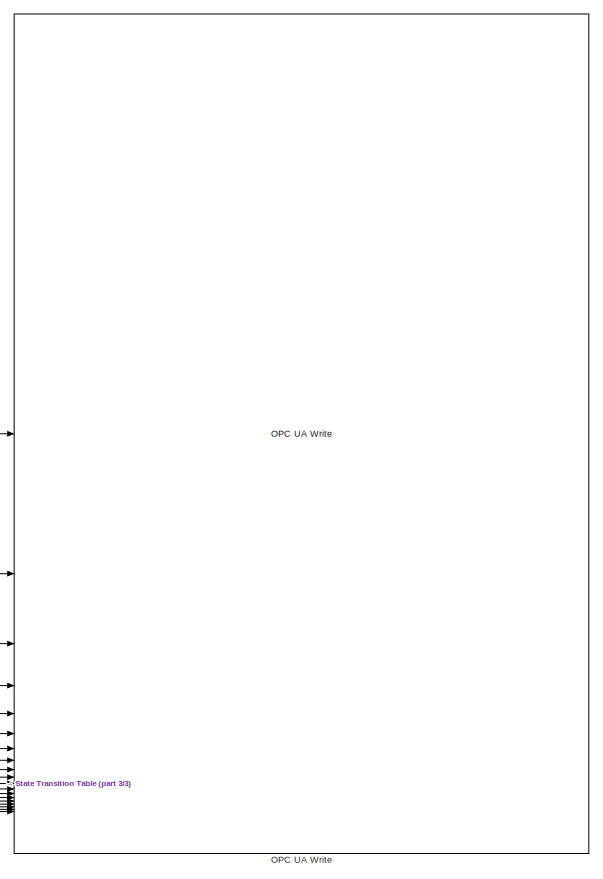
[diagram: root canvas - part 1/3, right side, full height]
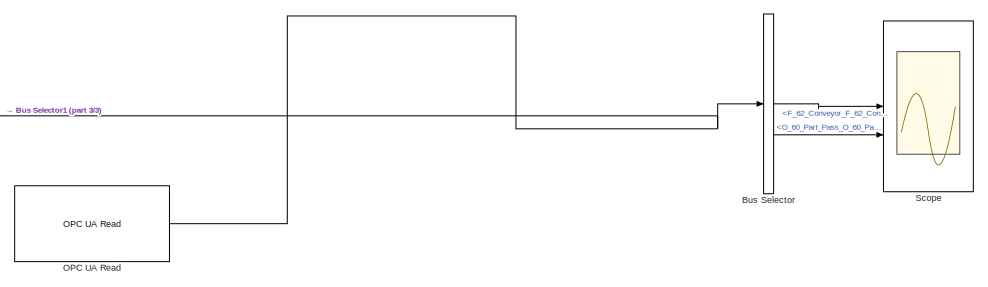
[diagram: root canvas - part 2/3, top center region]
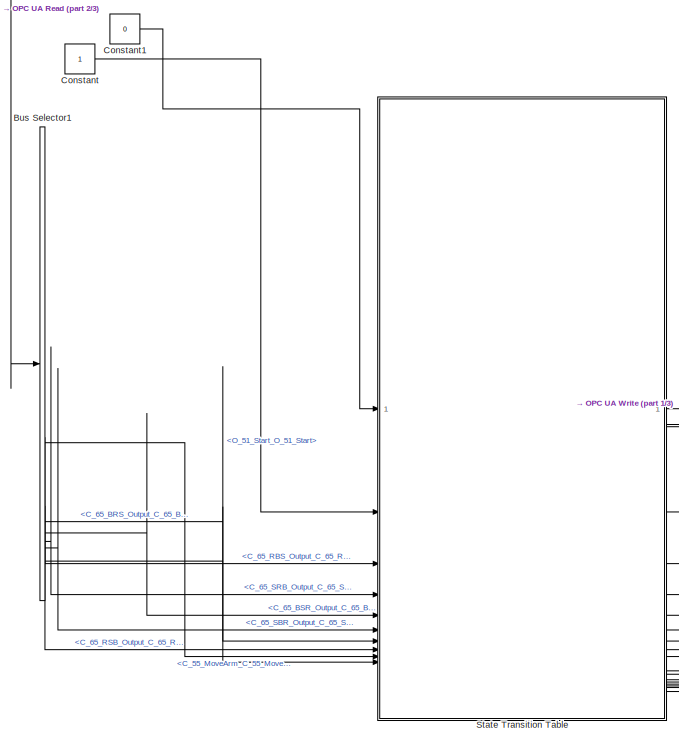
[diagram: root canvas - part 3/3, bottom left region]
MODEL slx_985c180f3ad2
KIND model
CONFIG AbsTol = auto
CONFIG EnableMultiTasking = off
CONFIG FixedStep = 0.05
CONFIG MaxStep = auto
CONFIG MinStep = auto
CONFIG RelTol = 1e-3
CONFIG SampleTimeConstraint = Unconstrained
CONFIG SolverName = FixedStepAuto
CONFIG StartTime = 0.0
CONFIG StopTime = 30
BLOCK [BusSelector] Bus Selector
  OutputSignals = F_62_Conveyor_F_62_Conveyor,O_60_Part_Pass_O_60_Part_Pass
BLOCK [BusSelector] Bus Selector1
  OutputSignals = C_55_Cart2Del_C_55_Cart2Del,C_55_MoveArm_C_55_MoveArm,C_65_RBS_Output_C_65_RBS_Output,C_65_RSB_Output_C_65_RSB_Output,C_65_BRS_Output_C_65_BRS_Output,C_65_BSR_Output_C_65_BSR_Output,C_65_SRB_Output_C_65_SRB_Output,C_65_SBR_Output_C_65_SBR_Output,O_60_SInd_O_60_SInd,O_60_SPhoto_O_60_SPhoto,O_51_Start_O_51_Start
BLOCK [Constant] Constant
BLOCK [Constant] Constant1
  Value = 0
BLOCK [Reference] OPC UA Read  REF=opcualib/OPC UA Read
  SourceBlock = opcualib/OPC UA Read
  SourceType = opcUARead
BLOCK [Reference] OPC UA Write  REF=opcualib/OPC UA Write
  SourceBlock = opcualib/OPC UA Write
  SourceType = opcUAWrite
BLOCK [Scope] Scope
  Floating = off
  NumInputPorts = 2
  ScopeSpecificationString = Simulink.scopes.TimeScopeBlockCfg('CurrentConfiguration', extmgr.ConfigurationSet(extmgr.Configuration('Core','General UI',true,'FigureColor',[1 1 1]),extmgr.Configuration('Core','Source UI',true),extmgr.Configuration('Sources','WiredSimulink',true),extmgr.Configuration('Visuals','Time Domain',true,'SerializedDisplays',{struct('MinYLimReal','-0.125','MaxYLimReal','1.125','YLabelReal','','MinYLimMa...<+2244ch>
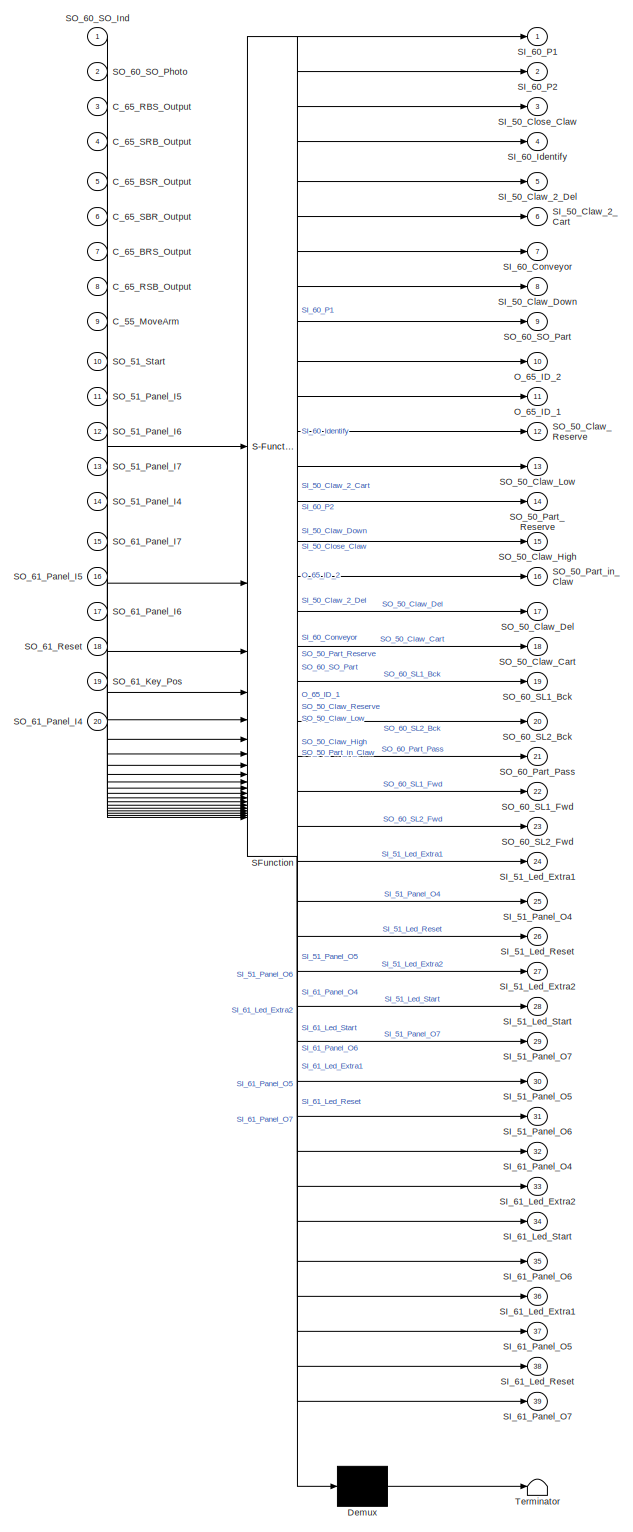
[diagram: State Transition Table - part 1/1, most of the canvas]
BLOCK [SubSystem] State Transition Table
  ErrorFcn = Stateflow.Translate.translate
  PermitHierarchicalResolution = ExplicitOnly
  SFBlockType = State Transition Table
  TreatAsAtomicUnit = on
BLOCK [Demux] State Transition Table/ Demux 
  Outputs = 1
BLOCK [S-Function] State Transition Table/ SFunction 
  EnableBusSupport = on
  FunctionName = sf_sfun
  PortCounts = [20 40]
  SFcnIsStateOwnerBlock = off
  SFunctionDeploymentMode = off
  Tag = Stateflow S-Function 4
BLOCK [Terminator] State Transition Table/ Terminator 
BLOCK [Inport] State Transition Table/C_55_MoveArm
  Port = 9
BLOCK [Inport] State Transition Table/C_65_BRS_Output
  Port = 7
BLOCK [Inport] State Transition Table/C_65_BSR_Output
  Port = 5
BLOCK [Inport] State Transition Table/C_65_RBS_Output
  Port = 3
BLOCK [Inport] State Transition Table/C_65_RSB_Output
  Port = 8
BLOCK [Inport] State Transition Table/C_65_SBR_Output
  Port = 6
BLOCK [Inport] State Transition Table/C_65_SRB_Output
  Port = 4
BLOCK [Outport] State Transition Table/O_65_ID_1
  Port = 11
BLOCK [Outport] State Transition Table/O_65_ID_2
  Port = 10
BLOCK [Outport] State Transition Table/SI_50_Claw_2_Cart
  Port = 6
BLOCK [Outport] State Transition Table/SI_50_Claw_2_Del
  Port = 5
BLOCK [Outport] State Transition Table/SI_50_Claw_Down
  Port = 8
BLOCK [Outport] State Transition Table/SI_50_Close_Claw
  Port = 3
BLOCK [Outport] State Transition Table/SI_51_Led_Extra1
  Port = 24
BLOCK [Outport] State Transition Table/SI_51_Led_Extra2
  Port = 27
BLOCK [Outport] State Transition Table/SI_51_Led_Reset
  Port = 26
BLOCK [Outport] State Transition Table/SI_51_Led_Start
  Port = 28
BLOCK [Outport] State Transition Table/SI_51_Panel_O4
  Port = 25
BLOCK [Outport] State Transition Table/SI_51_Panel_O5
  Port = 30
BLOCK [Outport] State Transition Table/SI_51_Panel_O6
  Port = 31
BLOCK [Outport] State Transition Table/SI_51_Panel_O7
  Port = 29
BLOCK [Outport] State Transition Table/SI_60_Conveyor
  Port = 7
BLOCK [Outport] State Transition Table/SI_60_Identify
  Port = 4
BLOCK [Outport] State Transition Table/SI_60_P1
BLOCK [Outport] State Transition Table/SI_60_P2
  Port = 2
BLOCK [Outport] State Transition Table/SI_61_Led_Extra1
  Port = 36
BLOCK [Outport] State Transition Table/SI_61_Led_Extra2
  Port = 33
BLOCK [Outport] State Transition Table/SI_61_Led_Reset
  Port = 38
BLOCK [Outport] State Transition Table/SI_61_Led_Start
  Port = 34
BLOCK [Outport] State Transition Table/SI_61_Panel_O4
  Port = 32
BLOCK [Outport] State Transition Table/SI_61_Panel_O5
  Port = 37
BLOCK [Outport] State Transition Table/SI_61_Panel_O6
  Port = 35
BLOCK [Outport] State Transition Table/SI_61_Panel_O7
  Port = 39
BLOCK [Outport] State Transition Table/SO_50_Claw_Cart
  Port = 18
BLOCK [Outport] State Transition Table/SO_50_Claw_Del
  Port = 17
BLOCK [Outport] State Transition Table/SO_50_Claw_High
  Port = 15
BLOCK [Outport] State Transition Table/SO_50_Claw_Low
  Port = 13
BLOCK [Outport] State Transition Table/SO_50_Claw_Reserve
  Port = 12
BLOCK [Outport] State Transition Table/SO_50_Part_Reserve
  Port = 14
BLOCK [Outport] State Transition Table/SO_50_Part_in_Claw
  Port = 16
BLOCK [Inport] State Transition Table/SO_51_Panel_I4
  Port = 14
BLOCK [Inport] State Transition Table/SO_51_Panel_I5
  Port = 11
BLOCK [Inport] State Transition Table/SO_51_Panel_I6
  Port = 12
BLOCK [Inport] State Transition Table/SO_51_Panel_I7
  Port = 13
BLOCK [Inport] State Transition Table/SO_51_Start
  Port = 10
BLOCK [Outport] State Transition Table/SO_60_Part_Pass
  Port = 21
BLOCK [Outport] State Transition Table/SO_60_SL1_Bck
  Port = 19
BLOCK [Outport] State Transition Table/SO_60_SL1_Fwd
  Port = 22
BLOCK [Outport] State Transition Table/SO_60_SL2_Bck
  Port = 20
BLOCK [Outport] State Transition Table/SO_60_SL2_Fwd
  Port = 23
BLOCK [Inport] State Transition Table/SO_60_SO_Ind
BLOCK [Outport] State Transition Table/SO_60_SO_Part
  Port = 9
BLOCK [Inport] State Transition Table/SO_60_SO_Photo
  Port = 2
BLOCK [Inport] State Transition Table/SO_61_Key_Pos
  Port = 19
BLOCK [Inport] State Transition Table/SO_61_Panel_I4
  Port = 20
BLOCK [Inport] State Transition Table/SO_61_Panel_I5
  Port = 16
BLOCK [Inport] State Transition Table/SO_61_Panel_I6
  Port = 17
BLOCK [Inport] State Transition Table/SO_61_Panel_I7
  Port = 15
BLOCK [Inport] State Transition Table/SO_61_Reset
  Port = 18
LINE Bus Selector1:11 -> State Transition Table:10
LINE Bus Selector1:2 -> State Transition Table:9
LINE Bus Selector1:3 -> State Transition Table:3
LINE Bus Selector1:4 -> State Transition Table:8
LINE Bus Selector1:5 -> State Transition Table:7
LINE Bus Selector1:6 -> State Transition Table:5
LINE Bus Selector1:7 -> State Transition Table:4
LINE Bus Selector1:8 -> State Transition Table:6
LINE Bus Selector:1 -> Scope:1
LINE Bus Selector:2 -> Scope:2
LINE Constant1:1 -> State Transition Table:1
LINE Constant:1 -> State Transition Table:2
NET OPC UA Read:1 -> Bus Selector1:1, Bus Selector:1
LINE State Transition Table:1 -> OPC UA Write:12
LINE State Transition Table:12 -> OPC UA Write:10
LINE State Transition Table:13 -> OPC UA Write:7
LINE State Transition Table:15 -> OPC UA Write:8
LINE State Transition Table:16 -> OPC UA Write:9
LINE State Transition Table:17 -> OPC UA Write:5
LINE State Transition Table:18 -> OPC UA Write:6
LINE State Transition Table:19 -> OPC UA Write:16
LINE State Transition Table:2 -> OPC UA Write:13
LINE State Transition Table:20 -> OPC UA Write:18
LINE State Transition Table:22 -> OPC UA Write:17
LINE State Transition Table:23 -> OPC UA Write:19
LINE State Transition Table:3 -> OPC UA Write:4
LINE State Transition Table:4 -> OPC UA Write:14
LINE State Transition Table:5 -> OPC UA Write:2
LINE State Transition Table:6 -> OPC UA Write:1
LINE State Transition Table:7 -> OPC UA Write:11
LINE State Transition Table:8 -> OPC UA Write:3
LINE State Transition Table:9 -> OPC UA Write:15
note: NET lines group one-source signal fan-out (src -> all destinations, sorted); 1:1 wires keep LINE
CHART State Transition Table states=41 transitions=86
  STATE_LABEL 'state1\nSI_50_Claw_2_Cart=0;\nSI_50_Claw_2_Del=0;\nSI_50_Claw_Down=0;\nSI_50_Close_Claw=0;\nSI_60_Conveyor=0;\nSI_60_P1=0;\nSI_60_P2=0;\nSI_60_Identify=0;\nSO_60_SO_Part=0;\nSO_60_SO_Ind;\nSO_60_SO_Photo;\nC_65_RBS_Output;\nC_65_RSB_Output;\nC_65_BRS_Output;\nC_65_BSR_Output;\nC_65_SRB_Output;\nC_65_SBR_Output;\nSO_50_Part_Reserve=0;\nSO_50_Claw_Del=0;\nSO_50_Claw_Reserve=0;\nSO_50_Claw_Cart=1;\nSO_50_Claw_Low=0;\nSO_50...<+573ch>'
  STATE_LABEL 'state2'
  STATE_LABEL 'CLAW_DOWN\nSI_50_Claw_2_Cart=0;\nSI_50_Claw_2_Del=0;\nSI_50_Claw_Down=1;\nSI_50_Close_Claw=0;'
  STATE_LABEL 'CLAW_DOWN_1'
  STATE_LABEL 'after(0.2,sec)\n{SO_50_Claw_High=0;}'
  STATE_LABEL 'CLAW_DOWN_1'
  STATE_LABEL 'CLAW_UP\nSI_50_Claw_2_Cart=0;\nSI_50_Claw_2_Del=0;\nSI_50_Claw_Down=0;\nSI_50_Close_Claw=1;'
  STATE_LABEL 'CLAW_UP_1'
  STATE_LABEL 'after(0.2,sec)\n{SO_50_Claw_Low=0;}'
  STATE_LABEL 'CLAW_UP_1'
  STATE_LABEL 'CLAW_TO_DEL\nSI_50_Claw_2_Cart=0;\nSI_50_Claw_2_Del=1;\nSI_50_Claw_Down=0;\nSI_50_Close_Claw=1;'
  STATE_LABEL 'CLAW_TO_DEL_1'
  STATE_LABEL 'CLAW_TO_DEL_2'
  STATE_LABEL 'CLAW_TO_DEL_3'
  STATE_LABEL 'after(0.05,sec)\n{SO_50_Claw_Reserve=0;}'
  STATE_LABEL 'after(0.25,sec)\n{SO_50_Claw_Cart=0;}'
  STATE_LABEL 'after(0.5,sec)\n{SO_50_Claw_Reserve=1;}'
  STATE_LABEL 'CLAW_TO_DEL_1'
  STATE_LABEL 'CLAW_TO_DEL_2'
  STATE_LABEL 'CLAW_TO_DEL_3'
  STATE_LABEL 'CLAW_DOWN_DEL\nSI_50_Claw_2_Cart=0;\nSI_50_Claw_2_Del=0;\nSI_50_Claw_Down=1;\nSI_50_Close_Claw=1;'
  STATE_LABEL 'CLAW_DOWN_DEL_1'
  STATE_LABEL 'after(0.2,sec)\n{SO_50_Claw_High=0;}'
  STATE_LABEL 'CLAW_DOWN_DEL_1'
  STATE_LABEL 'back_to_cart\nSI_60_Conveyor=1;\nSI_60_P1=0;\nSI_60_P2=0;\nSI_60_Identify=0;\nSI_50_Close_Claw=0;\n'
  STATE_LABEL 'back_to_cart_1'
  STATE_LABEL 'back_to_cart_2'
  STATE_LABEL 'back_to_cart_4'
  STATE_LABEL 'back_to_cart_3'
  STATE_LABEL 'after(0.35,sec)\n{SO_50_Claw_Del=0;}'
  STATE_LABEL 'after(0.2,sec)\n{SO_50_Claw_Low=0;}'
  STATE_LABEL 'after(0.3,sec)\n{SO_60_SO_Part=0;}'
  STATE_LABEL 'after(0.45,sec)\n{SI_50_Claw_2_Cart=1;\nSO_50_Claw_High=1;}'
  STATE_LABEL 'back_to_cart_1'
  STATE_LABEL 'back_to_cart_2'
  STATE_LABEL 'back_to_cart_4'
  STATE_LABEL 'back_to_cart_3'
  STATE_LABEL 'decision'
  STATE_LABEL 'P1\nSI_60_Conveyor=1;\nSI_60_P1=1;\nSI_60_P2=0;\n'
  STATE_LABEL 'P1_1'
CHART  states=0 transitions=0
